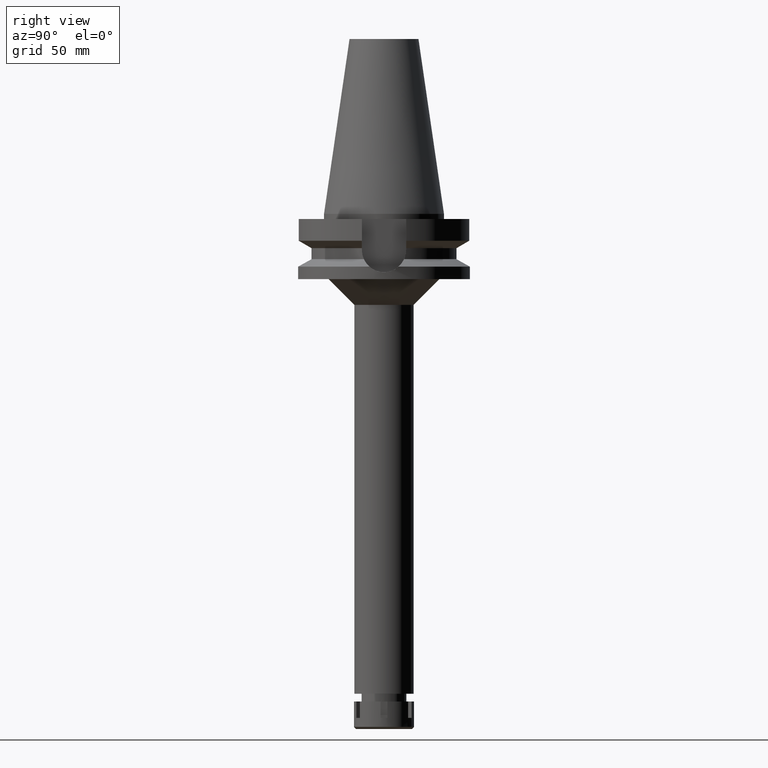
[diagram: clean part render]
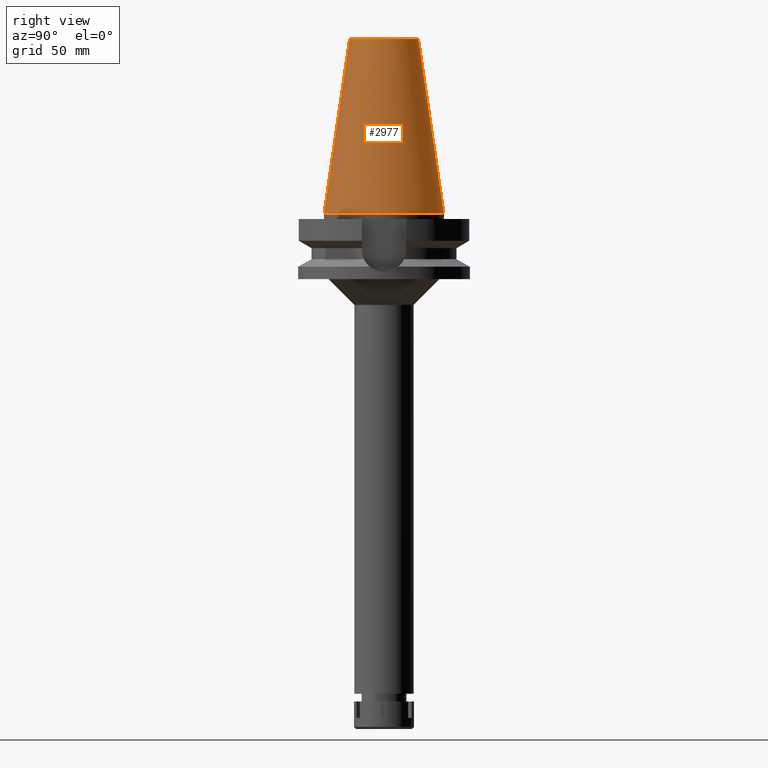
[diagram: same view with one face highlighted and labeled with its STEP entity id]
A machine part, right view. The second image highlights one B-rep face of the part: STEP entity #2977.
In plain terms, the highlighted conical surface has half-angle 8.297 deg.
Its self-contained STEP definition (entity closure, byte-faithful):
#15 = CARTESIAN_POINT ( 'NONE',  ( 0.0000000000000000000, 1.847992019912999597E-14, 8.526512829120999272E-13 ) ) ;
#434 = LINE ( 'NONE', #2122, #1185 ) ;
#436 = ORIENTED_EDGE ( 'NONE', *, *, #2904, .T. ) ;
#469 = CARTESIAN_POINT ( 'NONE',  ( 0.0000000000000000000, 20.07942971896000017, 101.7999999999999972 ) ) ;
#578 = DIRECTION ( 'NONE',  ( 0.0000000000000000000, 0.0000000000000000000, -1.000000000000000000 ) ) ;
#613 = VERTEX_POINT ( 'NONE', #1496 ) ;
#714 = AXIS2_PLACEMENT_3D ( 'NONE', #3387, #2205, #2802 ) ;
#781 = CIRCLE ( 'NONE', #1881, 34.92499999999999716 ) ;
#879 = FACE_OUTER_BOUND ( 'NONE', #2518, .T. ) ;
#880 = CARTESIAN_POINT ( 'NONE',  ( 0.0000000000000000000, 34.92499999999999716, 7.673861546209000218E-13 ) ) ;
#1101 = ORIENTED_EDGE ( 'NONE', *, *, #1695, .F. ) ;
#1168 = CARTESIAN_POINT ( 'NONE',  ( 0.0000000000000000000, 1.847992019912999597E-14, 50.89999999999999858 ) ) ;
#1185 = VECTOR ( 'NONE', #1248, 1000.000000000000114 ) ;
#1248 = DIRECTION ( 'NONE',  ( 0.0000000000000000000, -0.1443043893538948075, -0.9895333461855641000 ) ) ;
#1263 = LINE ( 'NONE', #469, #1773 ) ;
#1369 = CARTESIAN_POINT ( 'NONE',  ( 0.0000000000000000000, 20.07942971896000017, 101.7999999999999972 ) ) ;
#1409 = CONICAL_SURFACE ( 'NONE', #3553, 27.50221485948000222, 0.1448099680379422438 ) ;
#1496 = CARTESIAN_POINT ( 'NONE',  ( 0.0000000000000000000, -34.92499999999999716, 8.526512829120999272E-13 ) ) ;
#1539 = EDGE_CURVE ( 'NONE', #1594, #613, #434, .T. ) ;
#1551 = EDGE_CURVE ( 'NONE', #3542, #1896, #1263, .T. ) ;
#1594 = VERTEX_POINT ( 'NONE', #2672 ) ;
#1692 = DIRECTION ( 'NONE',  ( 0.0000000000000000000, 0.0000000000000000000, -1.000000000000000000 ) ) ;
#1695 = EDGE_CURVE ( 'NONE', #1896, #613, #781, .T. ) ;
#1773 = VECTOR ( 'NONE', #2404, 1000.000000000000114 ) ;
#1881 = AXIS2_PLACEMENT_3D ( 'NONE', #15, #1692, #3299 ) ;
#1896 = VERTEX_POINT ( 'NONE', #880 ) ;
#2122 = CARTESIAN_POINT ( 'NONE',  ( 0.0000000000000000000, -20.07942971896000017, 101.7999999999999972 ) ) ;
#2205 = DIRECTION ( 'NONE',  ( 0.0000000000000000000, 0.0000000000000000000, -1.000000000000000000 ) ) ;
#2278 = DIRECTION ( 'NONE',  ( 0.0000000000000000000, -1.000000000000000000, 0.0000000000000000000 ) ) ;
#2404 = DIRECTION ( 'NONE',  ( 0.0000000000000000000, 0.1443043893538948075, -0.9895333461855641000 ) ) ;
#2444 = CIRCLE ( 'NONE', #714, 20.07942971896000017 ) ;
#2518 = EDGE_LOOP ( 'NONE', ( #436, #3073, #1101, #3420 ) ) ;
#2672 = CARTESIAN_POINT ( 'NONE',  ( 0.0000000000000000000, -20.07942971896000017, 101.7999999999999972 ) ) ;
#2802 = DIRECTION ( 'NONE',  ( 0.0000000000000000000, 1.000000000000000000, 0.0000000000000000000 ) ) ;
#2904 = EDGE_CURVE ( 'NONE', #3542, #1594, #2444, .T. ) ;
#2977 = ADVANCED_FACE ( 'NONE', ( #879 ), #1409, .T. ) ;
#3073 = ORIENTED_EDGE ( 'NONE', *, *, #1539, .T. ) ;
#3299 = DIRECTION ( 'NONE',  ( 0.0000000000000000000, 1.000000000000000000, 0.0000000000000000000 ) ) ;
#3387 = CARTESIAN_POINT ( 'NONE',  ( 0.0000000000000000000, 1.847992019912999597E-14, 101.7999999999999972 ) ) ;
#3420 = ORIENTED_EDGE ( 'NONE', *, *, #1551, .F. ) ;
#3542 = VERTEX_POINT ( 'NONE', #1369 ) ;
#3553 = AXIS2_PLACEMENT_3D ( 'NONE', #1168, #578, #2278 ) ;